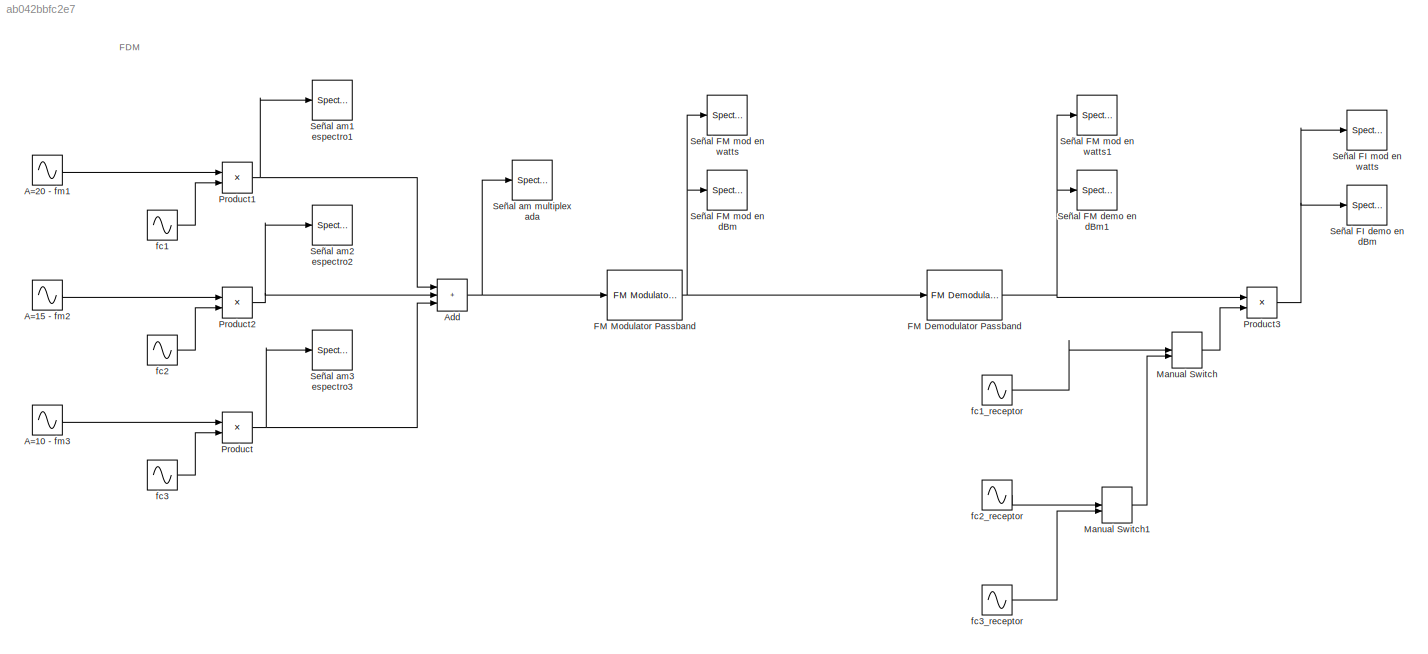
MODEL slx_ab042bbfc2e7
KIND model
CONFIG AbsTol = auto
CONFIG EnableMultiTasking = off
CONFIG FixedStep = auto
CONFIG MaxStep = auto
CONFIG MinStep = auto
CONFIG RelTol = 1e-3
CONFIG SampleTimeConstraint = Unconstrained
CONFIG SolverName = VariableStepAuto
CONFIG StartTime = 0.0
CONFIG StopTime = 0.1
BLOCK [Sin] A=10 - fm3
  Amplitude = test_am3
  Frequency = 2*pi*test_fm3
  Phase = pi/2
  SampleTime = test_ts
BLOCK [Sin] A=15 - fm2
  Amplitude = test_am2
  Frequency = 2*pi*test_fm2
  Phase = pi/2
  SampleTime = test_ts
BLOCK [Sin] A=20 - fm1
  Amplitude = test_am1
  Frequency = 2*pi*test_fm1
  SampleTime = test_ts
BLOCK [Sum] Add
  IconShape = rectangular
  Inputs = +++
BLOCK [Reference] FM Demodulator Passband  REF=commanapbnd3/FM
Demodulator
Passband
  SourceBlock = commanapbnd3/FM\nDemodulator\nPassband
  SourceType = FM Demodulator Passband
BLOCK [Reference] FM Modulator Passband  REF=commanapbnd3/FM
Modulator
Passband
  SourceBlock = commanapbnd3/FM\nModulator\nPassband
  SourceType = FM Modulator Passband
BLOCK [ManualSwitch] Manual Switch
  CurrentSetting = 0
BLOCK [ManualSwitch] Manual Switch1
  CurrentSetting = 0
BLOCK [Product] Product
BLOCK [Product] Product1
BLOCK [Product] Product2
BLOCK [Product] Product3
BLOCK [SpectrumAnalyzer] Señal FI demo en dBm
  GraphicalSettings = {"GraphicalSettings":{"Style":{"BackgroundColor":[0.12941176470588237,0.12941176470588237,0.12941176470588237],"AxesColor":[0.07058823529411765,0.07058823529411765,0.07058823529411765],"LabelsColor":[0.8509803921568627,0.8509803921568627,0.8509803921568627],"PreserveColors":false,"Visible":[true],"LineStyle":["-"],"LineColor":[[1,1,0.06666666666666667]],"LineWidth":[1.5],"Marker":["none"],"FontSiz...<+929ch>  <repeated x10 — deduplicated; at blocks: Señal FI demo en dBm, Señal FI mod en watts, Señal FM demo en dBm1, Señal FM mod en dBm, Señal FM mod en watts, Señal FM mod en watts1, Señal am multiplexada, Señal am1 espectro1, Señal am2 espectro2, Señal am3 espectro3>
  OpenAtSimulationStart = off
  SampleRate = 44.1e3
  ScopeFrameLocation = window
  SelectedToolstripTab = spectrumAnalyzerToolstrip.spectrumTab
  ShowLegend = on
  StartFrequency = 20
  StopFrequency = 20e3
  WasSavedAsWebScope = on
  WindowPosition = [1.000000,1.000000,1920.000000,1057.000000,]
  YLimits = [-106.50993919,36.77110611]
BLOCK [SpectrumAnalyzer] Señal FI mod en watts
  OpenAtSimulationStart = off
  SampleRate = 44.1e3
  ScopeFrameLocation = window
  SelectedToolstripTab = spectrumAnalyzerToolstrip.spectrumTab
  ShowLegend = on
  SpectrumUnits = Watts
  StartFrequency = 20
  StopFrequency = 20e3
  WasSavedAsWebScope = on
  WindowPosition = [1.000000,1.000000,1920.000000,1057.000000,]
  YLimits = [-0.7814225,7.03280248]
BLOCK [SpectrumAnalyzer] Señal FM demo en dBm1
  OpenAtSimulationStart = off
  SampleRate = 44.1e3
  ScopeFrameLocation = window
  SelectedToolstripTab = spectrumAnalyzerToolstrip.spectrumTab
  ShowLegend = on
  StartFrequency = 20
  StopFrequency = 20e3
  WasSavedAsWebScope = on
  WindowPosition = [1.000000,1.000000,1920.000000,1057.000000,]
  YLimits = [-84.49489701,58.22565386]
BLOCK [SpectrumAnalyzer] Señal FM mod en dBm
  OpenAtSimulationStart = off
  SampleRate = 44.1e3
  ScopeFrameLocation = window
  SelectedToolstripTab = spectrumAnalyzerToolstrip.spectrumTab
  ShowLegend = on
  StartFrequency = 20
  StopFrequency = 20e3
  WasSavedAsWebScope = on
  WindowPosition = [1.000000,1.000000,1920.000000,1057.000000,]
  YLimits = [-106.50993919,36.77110611]
BLOCK [SpectrumAnalyzer] Señal FM mod en watts
  OpenAtSimulationStart = off
  SampleRate = 44.1e3
  ScopeFrameLocation = window
  SelectedToolstripTab = spectrumAnalyzerToolstrip.spectrumTab
  ShowLegend = on
  SpectrumUnits = Watts
  StartFrequency = 20
  StopFrequency = 20e3
  WasSavedAsWebScope = on
  WindowPosition = [1.000000,1.000000,1920.000000,1057.000000,]
  YLimits = [-0.02193866,0.19744797]
BLOCK [SpectrumAnalyzer] Señal FM mod en watts1
  OpenAtSimulationStart = off
  SampleRate = 44.1e3
  ScopeFrameLocation = window
  SelectedToolstripTab = spectrumAnalyzerToolstrip.spectrumTab
  ShowLegend = on
  SpectrumUnits = Watts
  StartFrequency = 20
  StopFrequency = 20e3
  WasSavedAsWebScope = on
  WindowPosition = [1.000000,1.000000,1920.000000,1057.000000,]
  YLimits = [-3.1064895,27.95840554]
BLOCK [SpectrumAnalyzer] Señal am multiplexada
  OpenAtSimulationStart = off
  SampleRate = 44.1e3
  ScopeFrameLocation = window
  SelectedToolstripTab = spectrumAnalyzerToolstrip.spectrumTab
  ShowLegend = on
  SpectrumUnits = Watts
  StartFrequency = 20
  StopFrequency = 20e3
  WasSavedAsWebScope = on
  WindowPosition = [1.000000,1.000000,1920.000000,1057.000000,]
  YLimits = [-3.02841588,27.25574932]
BLOCK [SpectrumAnalyzer] Señal am1 espectro1
  OpenAtSimulationStart = off
  SampleRate = 44.1e3
  ScopeFrameLocation = window
  SelectedToolstripTab = spectrumAnalyzerToolstrip.spectrumTab
  ShowLegend = on
  SpectrumUnits = Watts
  StartFrequency = 20
  StopFrequency = 20e3
  WasSavedAsWebScope = on
  WindowPosition = [1.000000,1.000000,1920.000000,1057.000000,]
  YLimits = [-3.02836385,27.25527462]
BLOCK [SpectrumAnalyzer] Señal am2 espectro2
  OpenAtSimulationStart = off
  SampleRate = 44.1e3
  ScopeFrameLocation = window
  SelectedToolstripTab = spectrumAnalyzerToolstrip.spectrumTab
  ShowLegend = on
  SpectrumUnits = Watts
  StartFrequency = 20
  StopFrequency = 20e3
  WasSavedAsWebScope = on
  WindowPosition = [1.000000,1.000000,1920.000000,1057.000000,]
  YLimits = [-1.40886927,12.67982579]
BLOCK [SpectrumAnalyzer] Señal am3 espectro3
  OpenAtSimulationStart = off
  SampleRate = 44.1e3
  ScopeFrameLocation = window
  SelectedToolstripTab = spectrumAnalyzerToolstrip.spectrumTab
  ShowLegend = on
  SpectrumUnits = Watts
  StartFrequency = 20
  StopFrequency = 20e3
  WasSavedAsWebScope = on
  WindowPosition = [1.000000,1.000000,1920.000000,1057.000000,]
  YLimits = [-0.7176856,6.45917141]
BLOCK [Sin] fc1
  Amplitude = test_ac1
  Frequency = 2*pi*test_fc1
  SampleTime = test_ts
  VectorParams1D = off
BLOCK [Sin] fc1_receptor
  Frequency = 2*pi*test_fc1_receptor
  SampleTime = test_ts
  VectorParams1D = off
BLOCK [Sin] fc2
  Amplitude = test_ac2
  Frequency = 2*pi*test_fc2
  Phase = pi/2
  SampleTime = test_ts
BLOCK [Sin] fc2_receptor
  Frequency = 2*pi*test_fc2_receptor
  SampleTime = test_ts
  VectorParams1D = off
BLOCK [Sin] fc3
  Amplitude = test_ac3
  Frequency = 2*pi*test_fc3
  Phase = pi/2
  SampleTime = test_ts
BLOCK [Sin] fc3_receptor
  Frequency = 2*pi*test_fc3_receptor
  SampleTime = test_ts
  VectorParams1D = off
ANNOTATION (root): FDM
LINE A=10 - fm3:1 -> Product:1
LINE A=15 - fm2:1 -> Product2:1
LINE A=20 - fm1:1 -> Product1:1
NET Add:1 -> FM Modulator Passband:1, Señal am multiplexada:1
NET FM Demodulator Passband:1 -> Product3:1, Señal FM demo en dBm1:1, Señal FM mod en watts1:1
NET FM Modulator Passband:1 -> FM Demodulator Passband:1, Señal FM mod en dBm:1, Señal FM mod en watts:1
LINE Manual Switch1:1 -> Manual Switch:2
LINE Manual Switch:1 -> Product3:2
NET Product1:1 -> Add:1, Señal am1 espectro1:1
NET Product2:1 -> Add:2, Señal am2 espectro2:1
NET Product3:1 -> Señal FI demo en dBm:1, Señal FI mod en watts:1
NET Product:1 -> Add:3, Señal am3 espectro3:1
LINE fc1:1 -> Product1:2
LINE fc1_receptor:1 -> Manual Switch:1
LINE fc2:1 -> Product2:2
LINE fc2_receptor:1 -> Manual Switch1:1
LINE fc3:1 -> Product:2
LINE fc3_receptor:1 -> Manual Switch1:2
note: NET lines group one-source signal fan-out (src -> all destinations, sorted); 1:1 wires keep LINE
